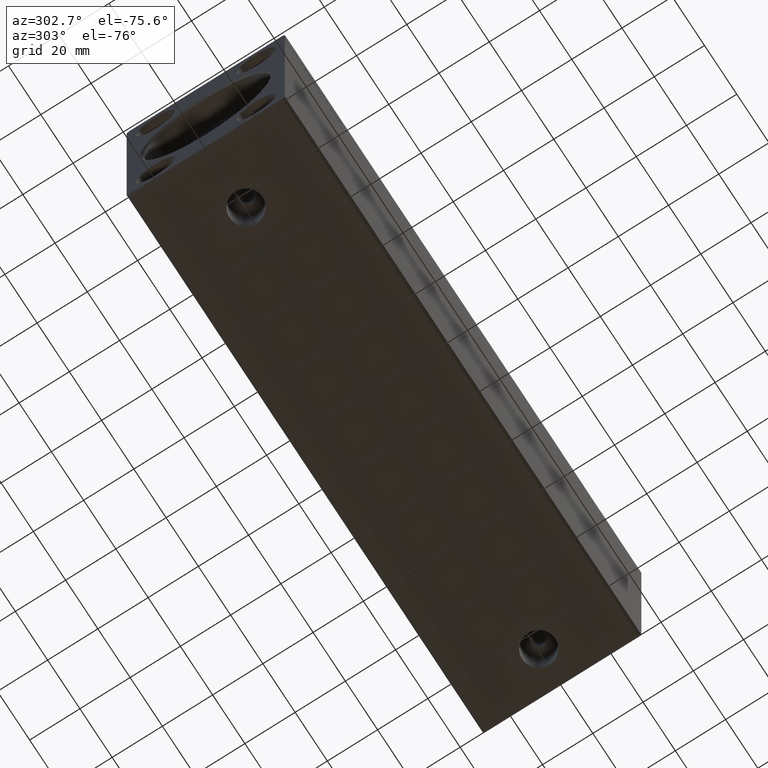
[diagram: clean part render]
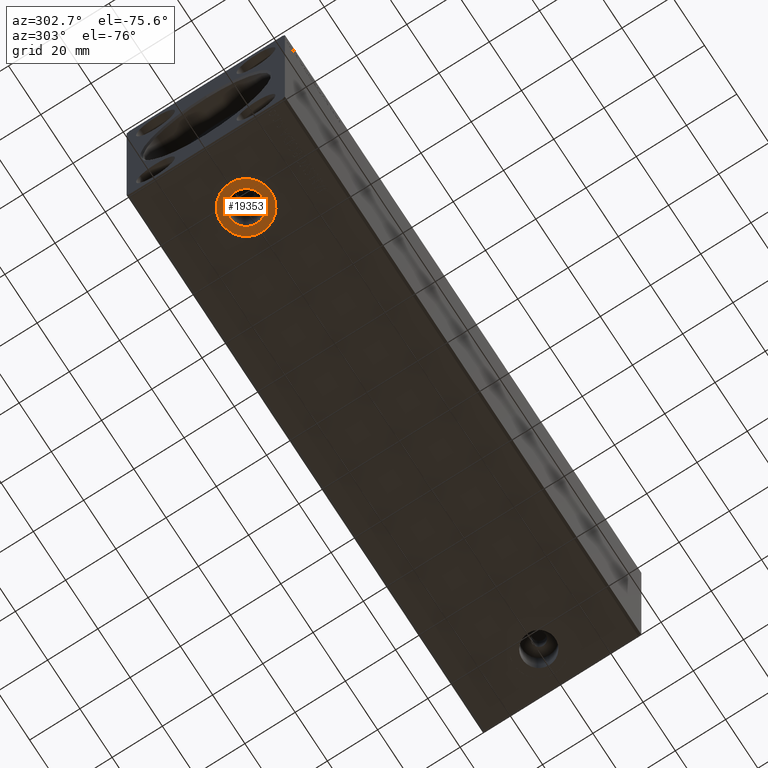
[diagram: same view with one face highlighted and labeled with its STEP entity id]
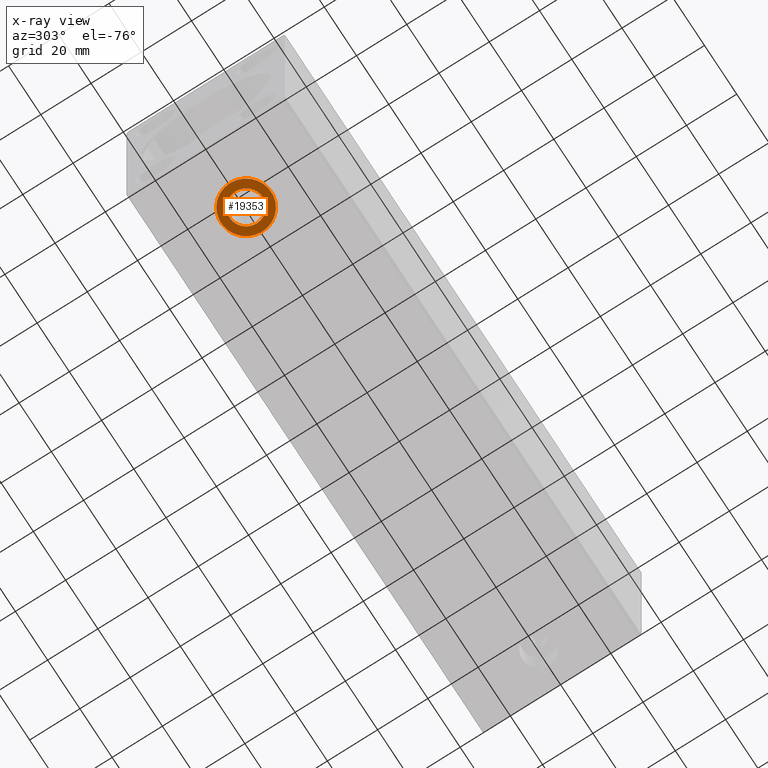
[diagram: x-ray of the same camera — body ghosted, the highlighted face saturated]
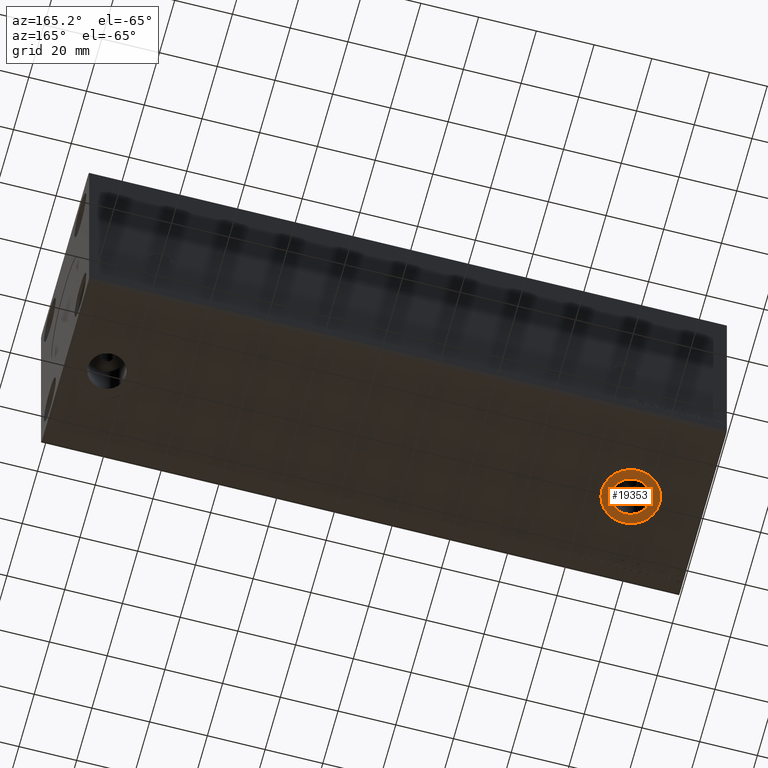
[diagram: same view with one face highlighted and labeled with its STEP entity id]
A machine part, auxiliary view. The second image highlights one B-rep face of the part: STEP entity #19353.
The next image is the same camera in x-ray: the body ghosted, the highlighted face saturated — about 0% of this face is hidden behind the body in this view.
A second angle (auxiliary view) of the same face is appended — the face is thin or edge-on in the first view.
In plain terms, the highlighted planar face has unit normal (0, 0, -1).
Its self-contained STEP definition (entity closure, byte-faithful):
#2279 = CARTESIAN_POINT ( 'NONE',  ( 25.00000000000000000, -2.665753871451547918E-15, -42.40000000000000568 ) ) ;
#3066 = ORIENTED_EDGE ( 'NONE', *, *, #25213, .F. ) ;
#3485 = ORIENTED_EDGE ( 'NONE', *, *, #34734, .F. ) ;
#5398 = EDGE_CURVE ( 'NONE', #29038, #18909, #9234, .T. ) ;
#5907 = CARTESIAN_POINT ( 'NONE',  ( 0.000000000000000000, 0.000000000000000000, -42.40000000000000568 ) ) ;
#5966 = CARTESIAN_POINT ( 'NONE',  ( 35.00000000000000000, -1.441107072304194662E-15, -42.40000000000000568 ) ) ;
#6009 = AXIS2_PLACEMENT_3D ( 'NONE', #11230, #20896, #30978 ) ;
#8174 = CIRCLE ( 'NONE', #32853, 6.580000000000002736 ) ;
#9162 = DIRECTION ( 'NONE',  ( -1.000000000000000000, 0.000000000000000000, 0.000000000000000000 ) ) ;
#9234 = CIRCLE ( 'NONE', #38716, 10.00000000000000000 ) ;
#10820 = CIRCLE ( 'NONE', #34816, 10.00000000000000000 ) ;
#11230 = CARTESIAN_POINT ( 'NONE',  ( 25.00000000000000000, -2.665753871451547918E-15, -42.40000000000000568 ) ) ;
#13428 = CARTESIAN_POINT ( 'NONE',  ( 18.41999999999999815, -2.665753871451547918E-15, -42.40000000000000568 ) ) ;
#15306 = DIRECTION ( 'NONE',  ( -1.000000000000000000, 0.000000000000000000, 0.000000000000000000 ) ) ;
#15586 = FACE_BOUND ( 'NONE', #30148, .T. ) ;
#16306 = AXIS2_PLACEMENT_3D ( 'NONE', #5907, #19022, #18057 ) ;
#16700 = DIRECTION ( 'NONE',  ( 0.000000000000000000, 0.000000000000000000, -1.000000000000000000 ) ) ;
#18057 = DIRECTION ( 'NONE',  ( -1.000000000000000000, 0.000000000000000000, -0.000000000000000000 ) ) ;
#18909 = VERTEX_POINT ( 'NONE', #5966 ) ;
#19022 = DIRECTION ( 'NONE',  ( 0.000000000000000000, 0.000000000000000000, -1.000000000000000000 ) ) ;
#19353 = ADVANCED_FACE ( 'NONE', ( #15586, #28686 ), #22231, .T. ) ;
#19799 = EDGE_CURVE ( 'NONE', #18909, #29038, #10820, .T. ) ;
#20896 = DIRECTION ( 'NONE',  ( 0.000000000000000000, 0.000000000000000000, -1.000000000000000000 ) ) ;
#20972 = VERTEX_POINT ( 'NONE', #22071 ) ;
#22071 = CARTESIAN_POINT ( 'NONE',  ( 31.58000000000000540, -1.859936277612589271E-15, -42.40000000000000568 ) ) ;
#22231 = PLANE ( 'NONE',  #16306 ) ;
#22465 = DIRECTION ( 'NONE',  ( 0.000000000000000000, 0.000000000000000000, -1.000000000000000000 ) ) ;
#23696 = CARTESIAN_POINT ( 'NONE',  ( 15.00000000000000178, -2.665753871451547918E-15, -42.40000000000000568 ) ) ;
#25213 = EDGE_CURVE ( 'NONE', #20972, #34844, #34822, .T. ) ;
#25719 = CARTESIAN_POINT ( 'NONE',  ( 25.00000000000000000, -2.665753871451547918E-15, -42.40000000000000568 ) ) ;
#26148 = DIRECTION ( 'NONE',  ( -1.000000000000000000, 0.000000000000000000, 0.000000000000000000 ) ) ;
#27862 = EDGE_LOOP ( 'NONE', ( #36502, #37707 ) ) ;
#28686 = FACE_OUTER_BOUND ( 'NONE', #27862, .T. ) ;
#29038 = VERTEX_POINT ( 'NONE', #23696 ) ;
#30148 = EDGE_LOOP ( 'NONE', ( #3485, #3066 ) ) ;
#30978 = DIRECTION ( 'NONE',  ( -1.000000000000000000, 0.000000000000000000, 0.000000000000000000 ) ) ;
#31837 = CARTESIAN_POINT ( 'NONE',  ( 25.00000000000000000, -2.665753871451547918E-15, -42.40000000000000568 ) ) ;
#32853 = AXIS2_PLACEMENT_3D ( 'NONE', #2279, #22465, #9162 ) ;
#34734 = EDGE_CURVE ( 'NONE', #34844, #20972, #8174, .T. ) ;
#34816 = AXIS2_PLACEMENT_3D ( 'NONE', #25719, #16700, #26148 ) ;
#34822 = CIRCLE ( 'NONE', #6009, 6.580000000000002736 ) ;
#34844 = VERTEX_POINT ( 'NONE', #13428 ) ;
#36502 = ORIENTED_EDGE ( 'NONE', *, *, #5398, .T. ) ;
#37707 = ORIENTED_EDGE ( 'NONE', *, *, #19799, .T. ) ;
#38066 = DIRECTION ( 'NONE',  ( 0.000000000000000000, 0.000000000000000000, -1.000000000000000000 ) ) ;
#38716 = AXIS2_PLACEMENT_3D ( 'NONE', #31837, #38066, #15306 ) ;